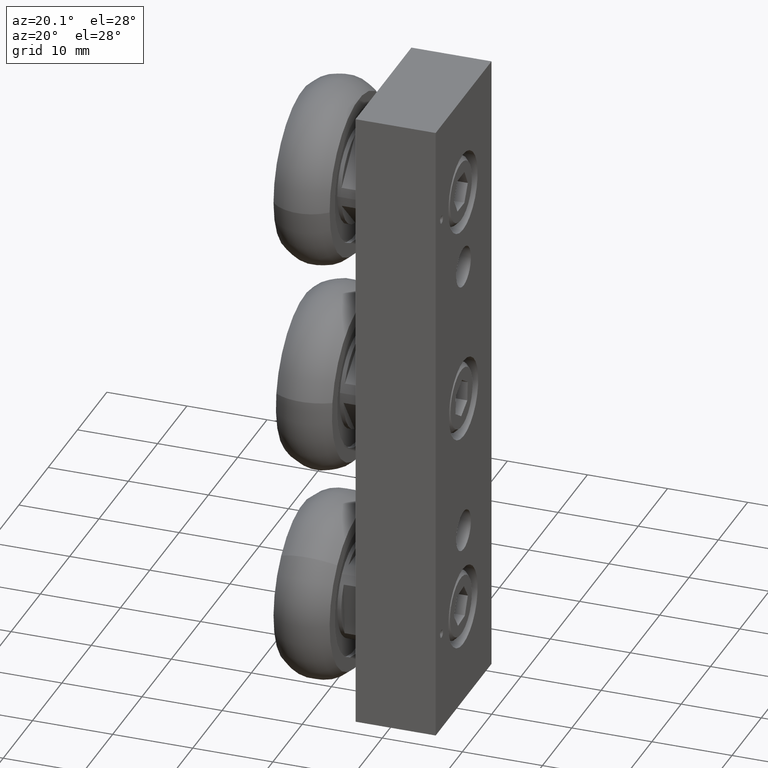
[diagram: clean part render]
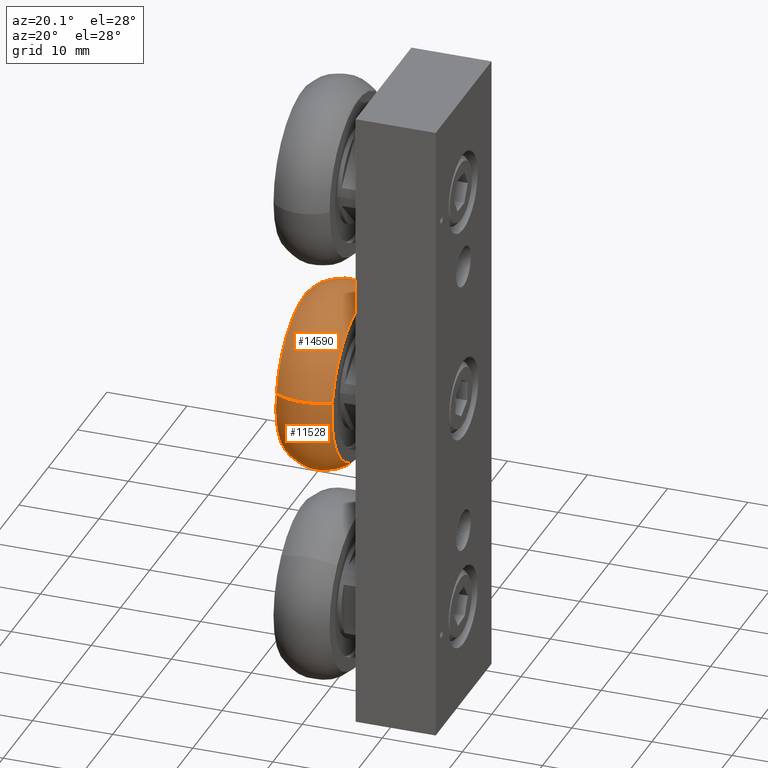
[diagram: same view with one multi-face feature highlighted, each face labeled with its STEP entity id]
A machine part, auxiliary view. The highlighted faces form ONE feature: a constant-radius fillet chain: 2 tangent blend faces with common blend radius 5 mm. The faces share edges in the B-rep.
Their STEP definitions:
[1] entity #14590 (Torus):
#386 = AXIS2_PLACEMENT_3D ( 'NONE', #58690, #49728, #1069 ) ;
#833 = DIRECTION ( 'NONE',  ( -1.000000000000000000, -4.122974739858164500E-35, -5.538395266801810043E-17 ) ) ;
#1069 = DIRECTION ( 'NONE',  ( 0.000000000000000000, 0.9850849533303011052, -0.1720686918711203106 ) ) ;
#1572 = VERTEX_POINT ( 'NONE', #50948 ) ;
#3005 = AXIS2_PLACEMENT_3D ( 'NONE', #8125, #26992, #36933 ) ;
#5608 = CARTESIAN_POINT ( 'NONE',  ( 0.2559055115368675248, 0.02326972330701540179, -2.366269339178058040 ) ) ;
#6182 = TOROIDAL_SURFACE ( 'NONE', #29679, 0.2519685039370078705, 0.1968503937007874127 ) ;
#6675 = VERTEX_POINT ( 'NONE', #7604 ) ;
#6898 = CIRCLE ( 'NONE', #59088, 0.3925478037114736862 ) ;
#7604 = CARTESIAN_POINT ( 'NONE',  ( 0.2559055115368675248, 0.4099626582060445501, -2.433814526259572730 ) ) ;
#7951 = VERTEX_POINT ( 'NONE', #37702 ) ;
#8125 = CARTESIAN_POINT ( 'NONE',  ( 0.3937007871274187387, 0.2714801052485086297, -2.409625230043221933 ) ) ;
#8345 = ORIENTED_EDGE ( 'NONE', *, *, #62354, .T. ) ;
#8426 = EDGE_CURVE ( 'NONE', #1572, #6675, #6898, .T. ) ;
#12239 = EDGE_LOOP ( 'NONE', ( #13188, #8345, #61187, #61633 ) ) ;
#13188 = ORIENTED_EDGE ( 'NONE', *, *, #51781, .T. ) ;
#14590 = ADVANCED_FACE ( 'NONE', ( #48889 ), #6182, .T. ) ;
#16730 = CIRCLE ( 'NONE', #386, 0.1968503937007874127 ) ;
#19656 = DIRECTION ( 'NONE',  ( -9.529844286237909855E-18, -0.9850849533303009942, 0.1720686918711201718 ) ) ;
#23858 = DIRECTION ( 'NONE',  ( -1.000000000000000000, -4.122974739858164500E-35, -5.538395266801810043E-17 ) ) ;
#24703 = CIRCLE ( 'NONE', #43106, 0.3925478037114736862 ) ;
#26992 = DIRECTION ( 'NONE',  ( -5.455789842922222545E-17, 0.1720686918711199775, 0.9850849533303013272 ) ) ;
#29679 = AXIS2_PLACEMENT_3D ( 'NONE', #62339, #23858, #19656 ) ;
#29846 = CARTESIAN_POINT ( 'NONE',  ( 0.5314960627179698971, -0.3634232115920137396, -2.298724152096543349 ) ) ;
#30739 = VERTEX_POINT ( 'NONE', #29846 ) ;
#32034 = EDGE_CURVE ( 'NONE', #30739, #1572, #16730, .T. ) ;
#33084 = DIRECTION ( 'NONE',  ( 0.000000000000000000, -0.9850849533303009942, 0.1720686918711201996 ) ) ;
#36933 = DIRECTION ( 'NONE',  ( 0.000000000000000000, -0.9850849533303009942, 0.1720686918711202829 ) ) ;
#37702 = CARTESIAN_POINT ( 'NONE',  ( 0.5314960627179698971, 0.4099626582060445501, -2.433814526259572730 ) ) ;
#37951 = CARTESIAN_POINT ( 'NONE',  ( 0.5314960627179698971, 0.02326972330701540179, -2.366269339178058040 ) ) ;
#39741 = CIRCLE ( 'NONE', #3005, 0.1968503937007874682 ) ;
#39850 = DIRECTION ( 'NONE',  ( 0.000000000000000000, -0.9850849533303009942, 0.1720686918711201996 ) ) ;
#43106 = AXIS2_PLACEMENT_3D ( 'NONE', #37951, #57539, #33084 ) ;
#48889 = FACE_OUTER_BOUND ( 'NONE', #12239, .T. ) ;
#49728 = DIRECTION ( 'NONE',  ( 5.455789842922221312E-17, -0.1720686918711200608, -0.9850849533303011052 ) ) ;
#50948 = CARTESIAN_POINT ( 'NONE',  ( 0.2559055115368675248, -0.3634232115920137396, -2.298724152096543349 ) ) ;
#51781 = EDGE_CURVE ( 'NONE', #30739, #7951, #24703, .T. ) ;
#57539 = DIRECTION ( 'NONE',  ( -1.000000000000000000, -4.122974739858164500E-35, -5.538395266801810043E-17 ) ) ;
#58690 = CARTESIAN_POINT ( 'NONE',  ( 0.3937007871274187387, -0.2249406586344777914, -2.322913448312893703 ) ) ;
#59088 = AXIS2_PLACEMENT_3D ( 'NONE', #5608, #833, #39850 ) ;
#61187 = ORIENTED_EDGE ( 'NONE', *, *, #8426, .F. ) ;
#61633 = ORIENTED_EDGE ( 'NONE', *, *, #32034, .F. ) ;
#62339 = CARTESIAN_POINT ( 'NONE',  ( 0.3937007871274187387, 0.02326972330701540179, -2.366269339178058040 ) ) ;
#62354 = EDGE_CURVE ( 'NONE', #7951, #6675, #39741, .T. ) ;
[2] entity #11528 (Torus):
#263 = AXIS2_PLACEMENT_3D ( 'NONE', #52324, #57134, #51685 ) ;
#386 = AXIS2_PLACEMENT_3D ( 'NONE', #58690, #49728, #1069 ) ;
#1069 = DIRECTION ( 'NONE',  ( 0.000000000000000000, 0.9850849533303011052, -0.1720686918711203106 ) ) ;
#1572 = VERTEX_POINT ( 'NONE', #50948 ) ;
#2805 = ORIENTED_EDGE ( 'NONE', *, *, #62354, .F. ) ;
#3005 = AXIS2_PLACEMENT_3D ( 'NONE', #8125, #26992, #36933 ) ;
#5322 = CIRCLE ( 'NONE', #263, 0.3925478037114736862 ) ;
#5716 = EDGE_CURVE ( 'NONE', #7951, #30739, #5322, .T. ) ;
#6675 = VERTEX_POINT ( 'NONE', #7604 ) ;
#7604 = CARTESIAN_POINT ( 'NONE',  ( 0.2559055115368675248, 0.4099626582060445501, -2.433814526259572730 ) ) ;
#7951 = VERTEX_POINT ( 'NONE', #37702 ) ;
#8125 = CARTESIAN_POINT ( 'NONE',  ( 0.3937007871274187387, 0.2714801052485086297, -2.409625230043221933 ) ) ;
#10192 = ORIENTED_EDGE ( 'NONE', *, *, #5716, .T. ) ;
#11528 = ADVANCED_FACE ( 'NONE', ( #29217 ), #25274, .T. ) ;
#16390 = DIRECTION ( 'NONE',  ( -1.000000000000000000, -4.122974739858164500E-35, -5.538395266801810043E-17 ) ) ;
#16427 = CARTESIAN_POINT ( 'NONE',  ( 0.3937007871274187387, 0.02326972330701540179, -2.366269339178058040 ) ) ;
#16730 = CIRCLE ( 'NONE', #386, 0.1968503937007874127 ) ;
#20188 = CIRCLE ( 'NONE', #29361, 0.3925478037114736862 ) ;
#25274 = TOROIDAL_SURFACE ( 'NONE', #61117, 0.2519685039370078705, 0.1968503937007874127 ) ;
#26992 = DIRECTION ( 'NONE',  ( -5.455789842922222545E-17, 0.1720686918711199775, 0.9850849533303013272 ) ) ;
#29217 = FACE_OUTER_BOUND ( 'NONE', #36362, .T. ) ;
#29361 = AXIS2_PLACEMENT_3D ( 'NONE', #44580, #16390, #30447 ) ;
#29846 = CARTESIAN_POINT ( 'NONE',  ( 0.5314960627179698971, -0.3634232115920137396, -2.298724152096543349 ) ) ;
#30447 = DIRECTION ( 'NONE',  ( 0.000000000000000000, -0.9850849533303009942, 0.1720686918711201996 ) ) ;
#30739 = VERTEX_POINT ( 'NONE', #29846 ) ;
#32034 = EDGE_CURVE ( 'NONE', #30739, #1572, #16730, .T. ) ;
#33492 = ORIENTED_EDGE ( 'NONE', *, *, #46787, .F. ) ;
#36362 = EDGE_LOOP ( 'NONE', ( #2805, #10192, #56098, #33492 ) ) ;
#36933 = DIRECTION ( 'NONE',  ( 0.000000000000000000, -0.9850849533303009942, 0.1720686918711202829 ) ) ;
#37702 = CARTESIAN_POINT ( 'NONE',  ( 0.5314960627179698971, 0.4099626582060445501, -2.433814526259572730 ) ) ;
#39741 = CIRCLE ( 'NONE', #3005, 0.1968503937007874682 ) ;
#44580 = CARTESIAN_POINT ( 'NONE',  ( 0.2559055115368675248, 0.02326972330701540179, -2.366269339178058040 ) ) ;
#46787 = EDGE_CURVE ( 'NONE', #6675, #1572, #20188, .T. ) ;
#49728 = DIRECTION ( 'NONE',  ( 5.455789842922221312E-17, -0.1720686918711200608, -0.9850849533303011052 ) ) ;
#50444 = DIRECTION ( 'NONE',  ( -9.529844286237909855E-18, -0.9850849533303009942, 0.1720686918711201718 ) ) ;
#50948 = CARTESIAN_POINT ( 'NONE',  ( 0.2559055115368675248, -0.3634232115920137396, -2.298724152096543349 ) ) ;
#51685 = DIRECTION ( 'NONE',  ( 0.000000000000000000, -0.9850849533303009942, 0.1720686918711201996 ) ) ;
#52324 = CARTESIAN_POINT ( 'NONE',  ( 0.5314960627179698971, 0.02326972330701540179, -2.366269339178058040 ) ) ;
#55871 = DIRECTION ( 'NONE',  ( -1.000000000000000000, -4.122974739858164500E-35, -5.538395266801810043E-17 ) ) ;
#56098 = ORIENTED_EDGE ( 'NONE', *, *, #32034, .T. ) ;
#57134 = DIRECTION ( 'NONE',  ( -1.000000000000000000, -4.122974739858164500E-35, -5.538395266801810043E-17 ) ) ;
#58690 = CARTESIAN_POINT ( 'NONE',  ( 0.3937007871274187387, -0.2249406586344777914, -2.322913448312893703 ) ) ;
#61117 = AXIS2_PLACEMENT_3D ( 'NONE', #16427, #55871, #50444 ) ;
#62354 = EDGE_CURVE ( 'NONE', #7951, #6675, #39741, .T. ) ;